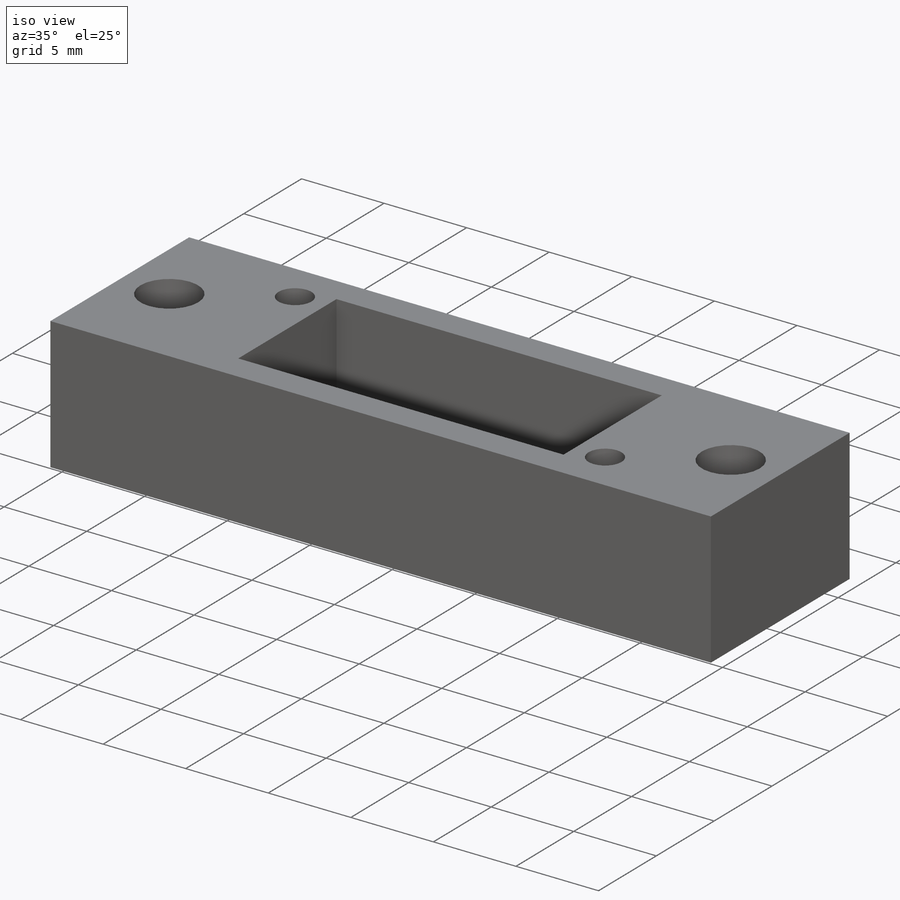
[diagram: iso view]
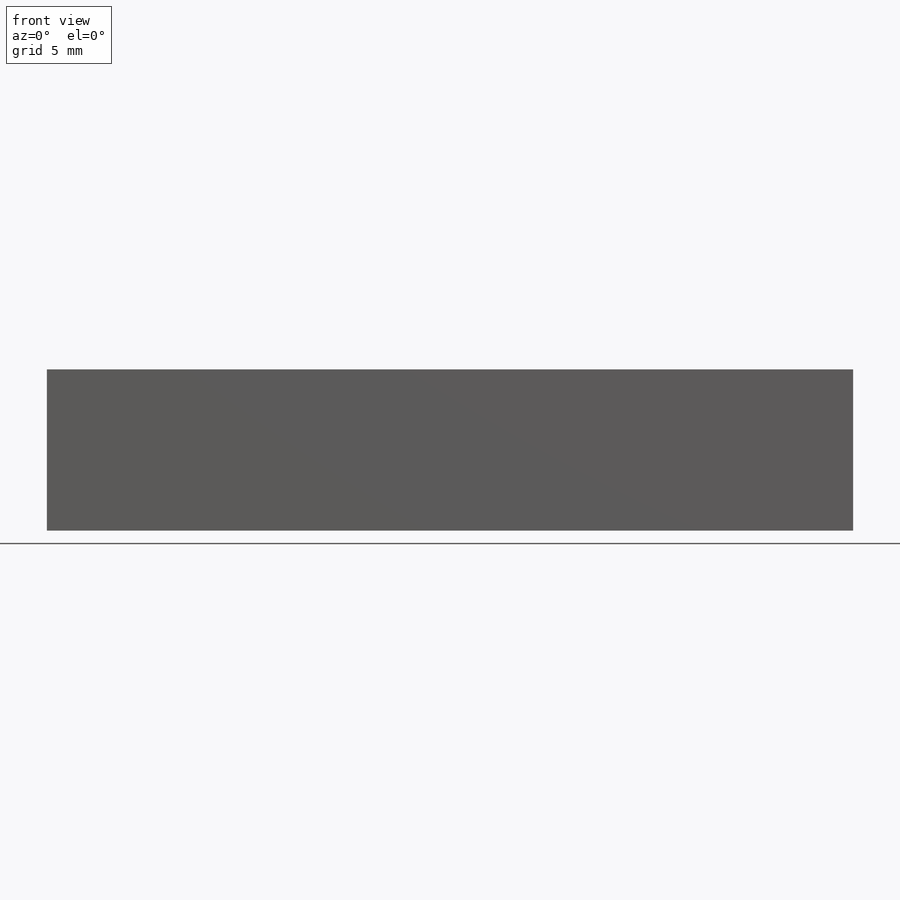
[diagram: front view]
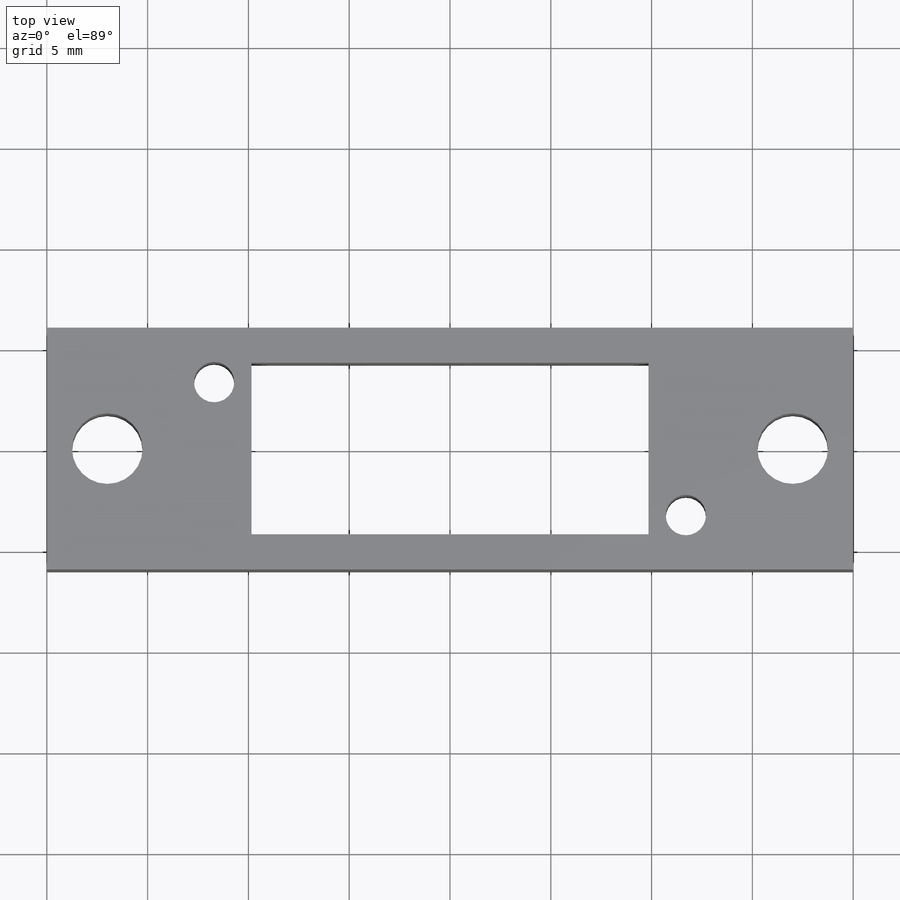
[diagram: top view]
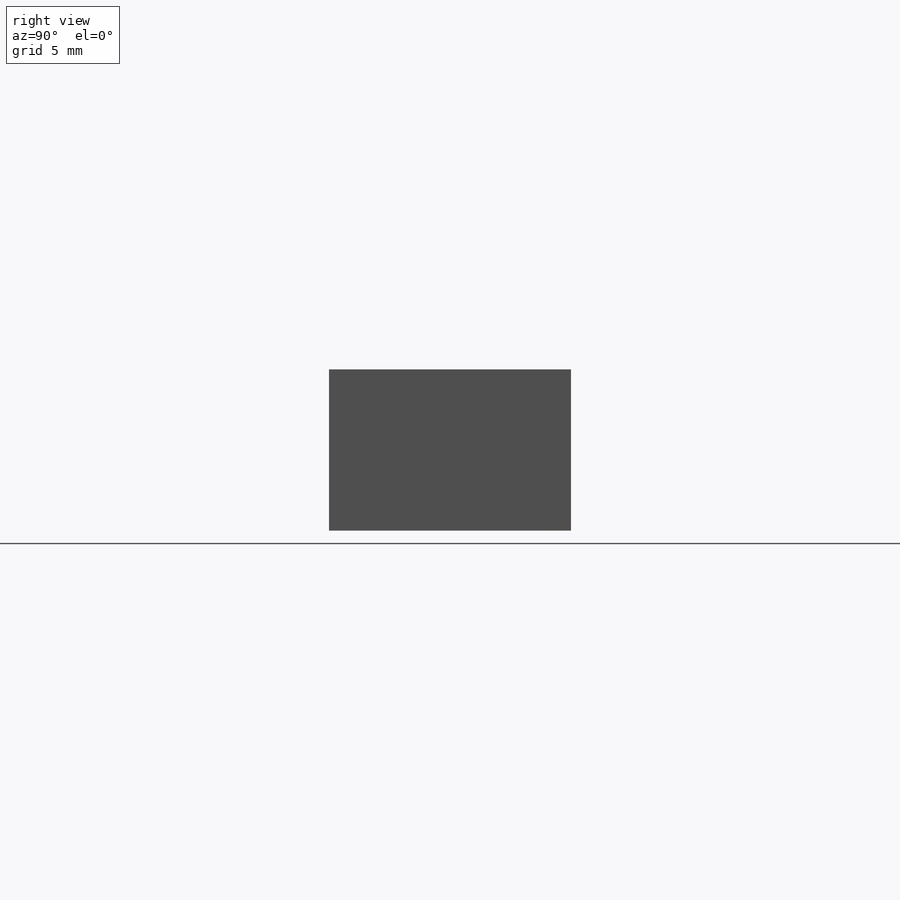
[diagram: right view]
SOLIDWORKS PART (.sldprt)
format: sldprt  version: not decoded by parser v0  size: 375,296 bytes
history: native  units: mm
features: sketch x4, cut_extrude x3, material x1, extrude x1 (+12 scaffold rows collapsed)
feature tree (21):
  scaffold x12  (default folders/planes/origin — collapsed)
  material  "재질 <지정안함>"
  sketch  "스케치1"  dims[D1=20.0mm D2=40.0mm D3=12.0mm D4=6.0mm]
  extrude  "보스-돌출1"  Depth=8mm
  sketch  "스케치2"  dims[D1=19.7mm D2=8.5mm D3=4.25mm D4=9.85mm]
  cut_extrude  "컷-돌출1"  Depth=8mm
  sketch  "스케치3"  dims[c1.D5=~0.460402mm c1.D1=~2.346018mm c1.D2=40.0mm c2.D2=~0.806262deg c2.D1=3.3mm c3.D2=3.3mm c3.D3=11.7mm c3.D4=11.7mm]
  cut_extrude  "컷-돌출2"  Depth=8mm
  sketch  "스케치4"  dims[D3=~1.603233mm D1=17.0mm D2=17.0mm]
  cut_extrude  "컷-돌출3"  Depth=10mm
decode coverage: 8 of 8 modeling features carry decoded parameters
note: ~ marks probable driven/reference dimensions
note: suppression state not decoded; provenance and decode notes live in map.json
